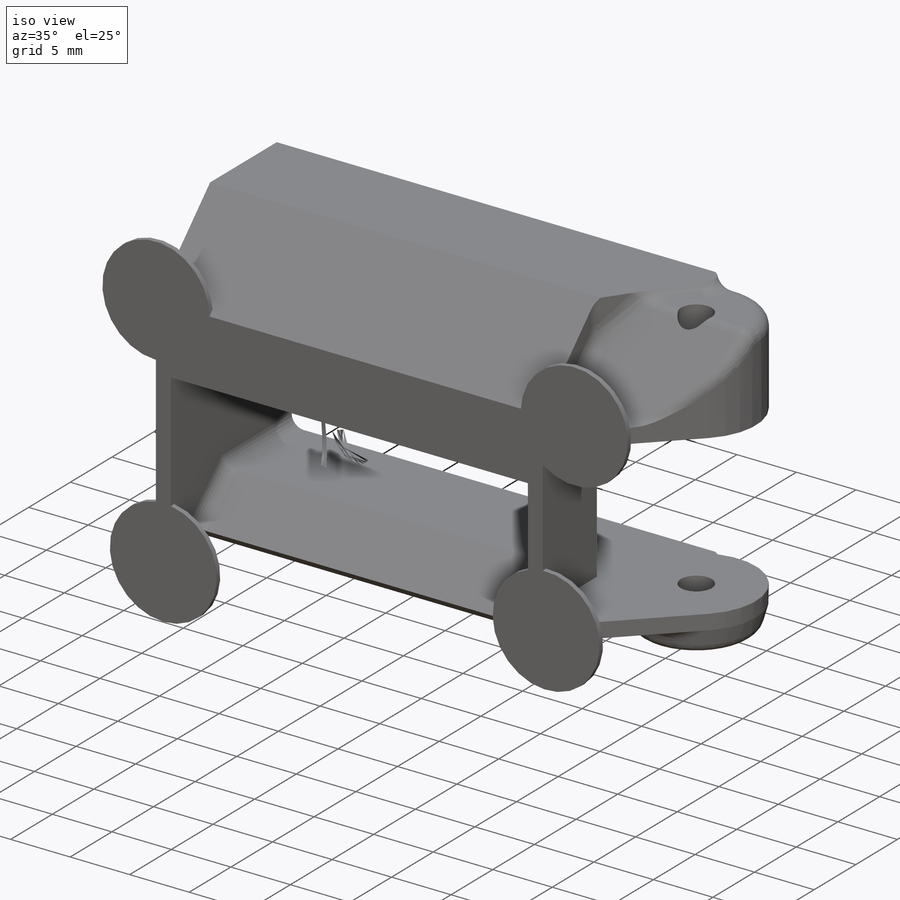
[diagram: iso view]
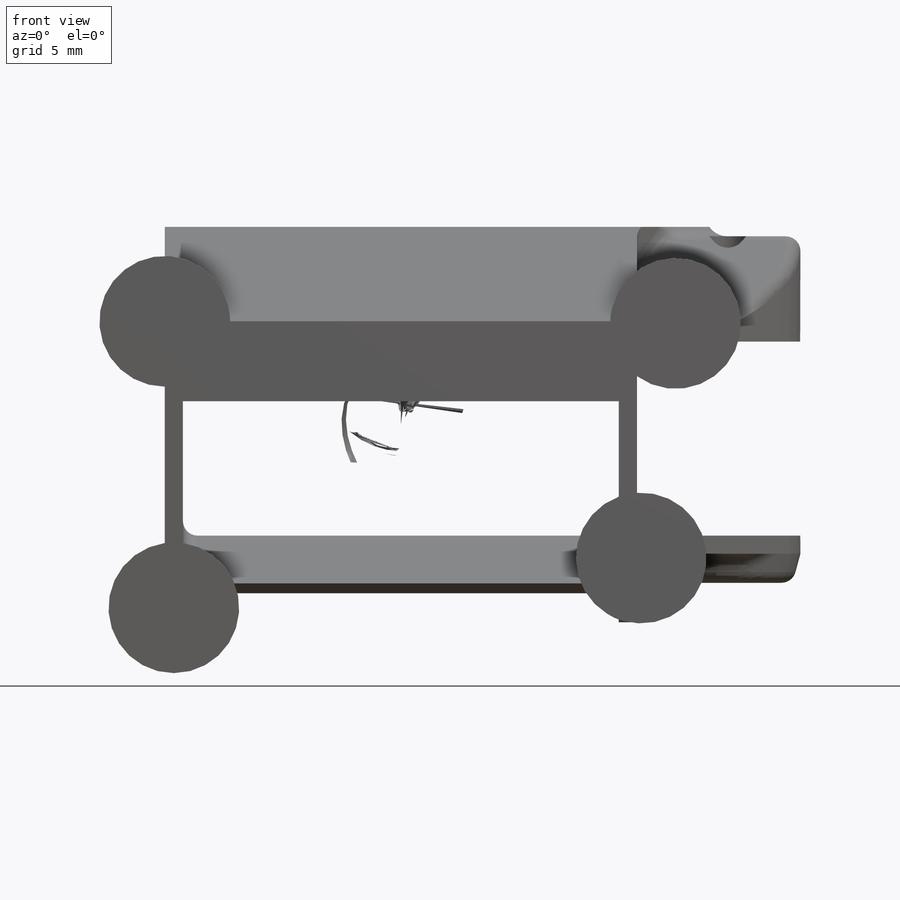
[diagram: front view]
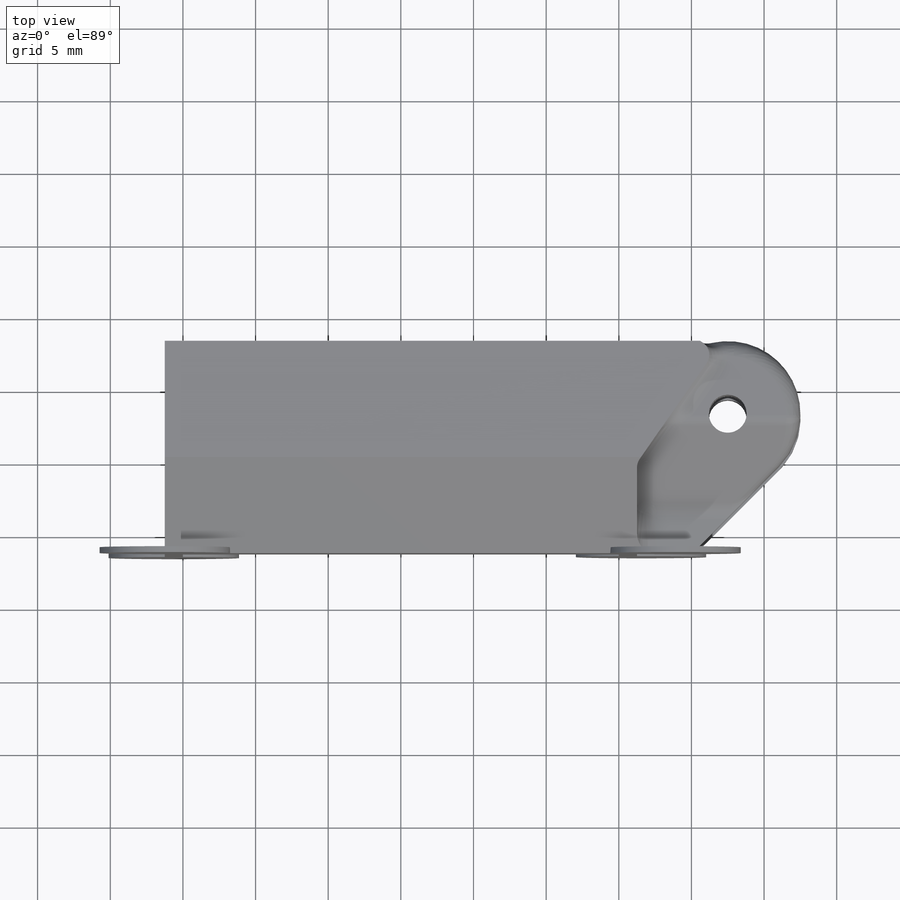
[diagram: top view]
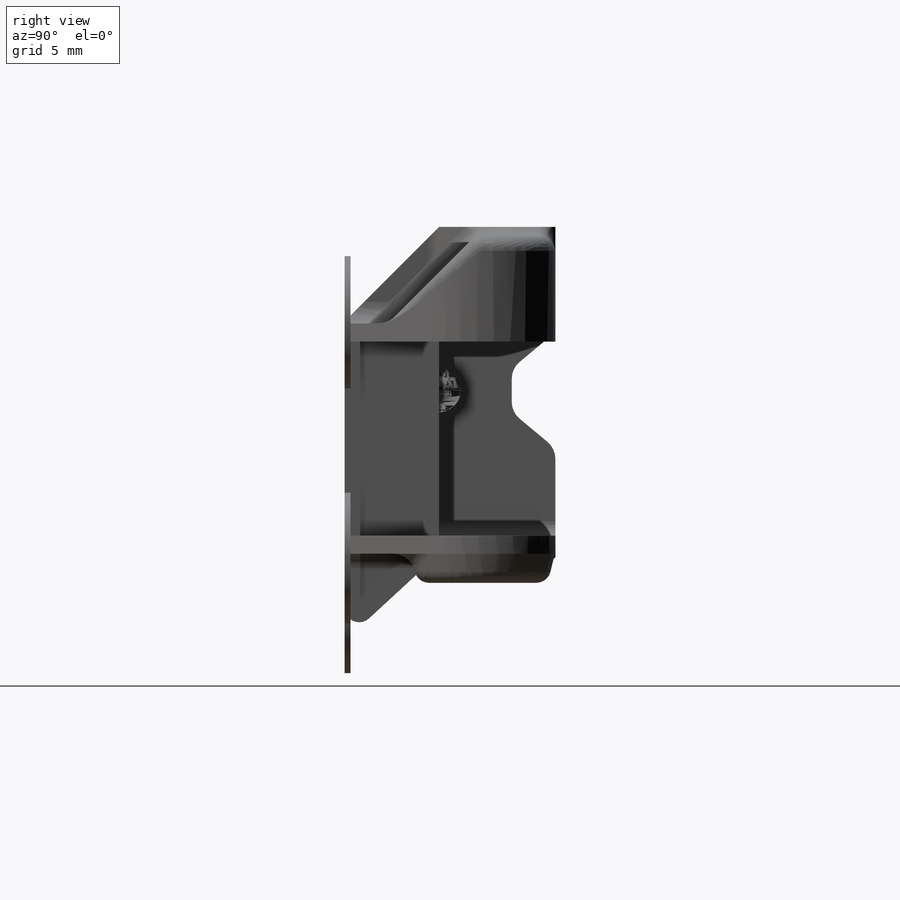
[diagram: right view]
SOLIDWORKS PART (.sldprt)
format: sldprt  version: not decoded by parser v0  size: 1,187,328 bytes
history: native  units: mm
features: sketch x14, extrude x11, fillet x4, cut_extrude x3, material x1 (+13 scaffold rows collapsed)
feature tree (46):
  scaffold x13  (default folders/planes/origin — collapsed)
  material  "ABS"
  sketch  "Sketch1"  dims[D1=30.0mm D2=20.0mm D3=1.25mm]
  extrude  "Boss-Extrude1"  Depth=8mm
  sketch  "Sketch2"  dims[c1.D1=1.25mm c1.D2=6.5mm c1.D3=10.0mm c1.D4=~7.378165mm c2.D4=~42.662245deg c3.D4=~5.425617mm c4.D4=45.0deg c4.D5=7.0mm c4.D6=12.0mm c4.D7=4.5mm c4.D3=12.0mm c5.D5=6.0mm c5.D6=4.0mm c5.D1=1.25mm]
  extrude  "Boss-Extrude5"  [1 undecoded]
  extrude  "Boss-Extrude6"  [1 undecoded]
  sketch  "Sketch2<5>"
  sketch  "Sketch5"
  extrude  "Boss-Extrude8"  Depth=1.25mm
  sketch  "Sketch4"  dims[c1.D1=~10.059455mm c2.D1=35.0deg c2.D2=1.25mm]
  extrude  "Boss-Extrude7"  [1 undecoded]
  sketch  "Sketch8"  dims[D1=0.0mm]
  cut_extrude  "Cut-Extrude1"  [1 undecoded]
  extrude  "Boss-Extrude12"  [1 undecoded]
  sketch  "Sketch4<6>"  dims[D1=5.4mm]
  sketch  "Sketch9"  dims[c1.D2=~3.738334mm c1.D4=5.0mm c1.D1=7.0mm c2.D2=6.25mm c2.D3=3.0mm c2.D5=~6.02463mm c3.D5=45.0deg]
  extrude  "Boss-Extrude13"  Depth=1.25mm
  sketch  "Sketch10"  dims[D1=0.0mm]
  extrude  "Boss-Extrude14"  [1 undecoded]
  sketch  "Sketch11"  dims[D2=3.0mm D1=0.0mm]
  extrude  "Boss-Extrude15"  Depth=6mm
  sketch  "Sketch14"
  extrude  "Boss-Extrude16"  Depth=2mm
  fillet  "Fillet6"  Radius=1mm
  sketch  "Sketch15"  dims[D1=2.6mm]
  cut_extrude  "Cut-Extrude2"  [1 undecoded]
  fillet  "Fillet5"  Radius=1mm
  fillet  "Fillet4"  Radius=1.5mm
  sketch  "Sketch17"  dims[c1.D1=3.0mm c1.D2=8.0mm c1.D3=~1.992321mm c2.D2=3.0mm c2.D3=9.0mm c2.D1=8.0mm c3.D3=3.0mm]
  cut_extrude  "Cut-Extrude3"  [1 undecoded]
  fillet  "Fillet7"  Radius=1.5mm
  sketch  "Sketch16"  dims[D1=9.0mm]
  extrude  "Boss-Extrude17"  Depth=0.4mm
decode coverage: 21 of 32 modeling features carry decoded parameters
note: ~ marks probable driven/reference dimensions
note: 8 parameter values undecoded
summary: no parameter record found for 8 features
note: suppression state not decoded; provenance and decode notes live in map.json
